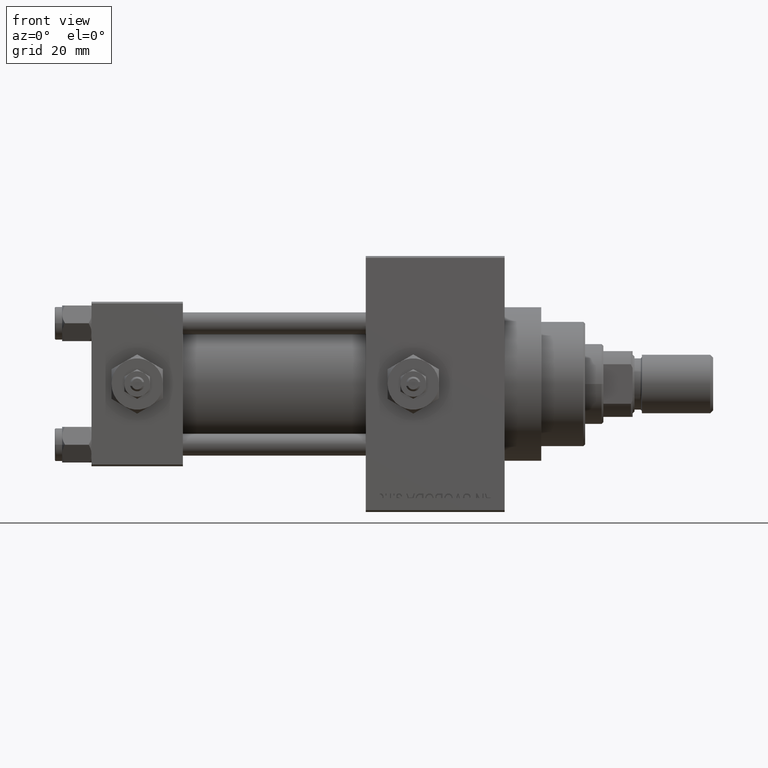
[diagram: clean part render]
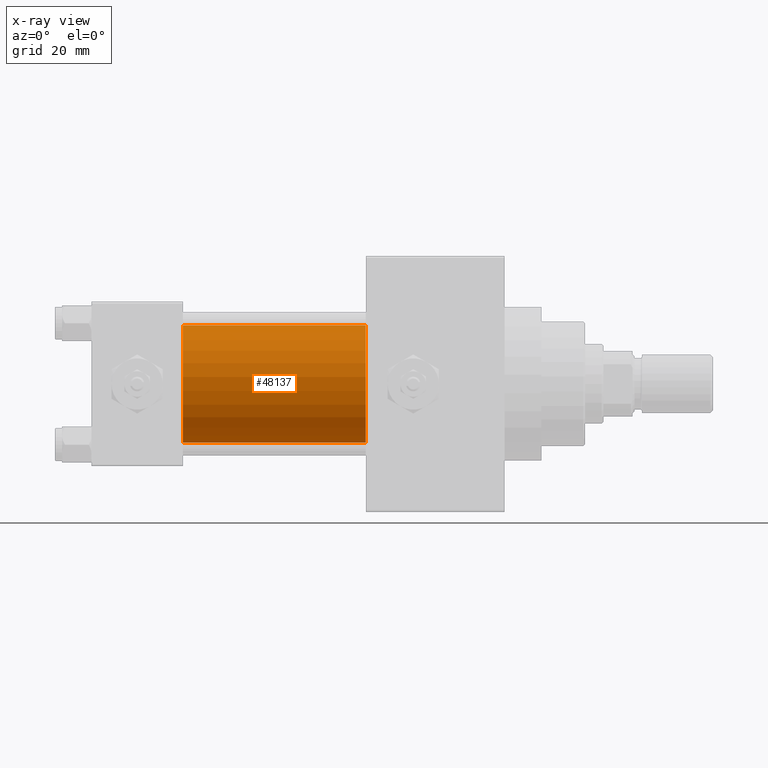
[diagram: x-ray — body ghosted, one internal face saturated and labeled with its STEP entity id]
A machine part, front view, then the same camera in x-ray: the body is ghosted and one INTERNAL B-rep face — a face not visible from any outside direction — is saturated and labeled: STEP entity #48137.
In plain terms, the highlighted cylindrical surface (partial cylindrical patch) has radius 16 mm, axis along (-1, -0, -0).
Its self-contained STEP definition (entity closure, byte-faithful):
#372 = CARTESIAN_POINT ( 'NONE',  ( 25.00000000000000000, -2.602085213965210642E-15, 0.000000000000000000 ) ) ;
#2064 = DIRECTION ( 'NONE',  ( -1.000000000000000000, -0.000000000000000000, -0.000000000000000000 ) ) ;
#2393 = FACE_OUTER_BOUND ( 'NONE', #9220, .T. ) ;
#3368 = CIRCLE ( 'NONE', #8172, 16.00000000000000000 ) ;
#4363 = DIRECTION ( 'NONE',  ( 0.000000000000000000, 0.000000000000000000, -1.000000000000000000 ) ) ;
#5521 = ORIENTED_EDGE ( 'NONE', *, *, #9618, .F. ) ;
#6753 = AXIS2_PLACEMENT_3D ( 'NONE', #17200, #24976, #48485 ) ;
#6989 = AXIS2_PLACEMENT_3D ( 'NONE', #45870, #38614, #34090 ) ;
#8172 = AXIS2_PLACEMENT_3D ( 'NONE', #372, #30696, #4363 ) ;
#9220 = EDGE_LOOP ( 'NONE', ( #14117, #38323, #37028, #5521 ) ) ;
#9618 = EDGE_CURVE ( 'NONE', #33186, #40098, #30678, .T. ) ;
#12327 = CARTESIAN_POINT ( 'NONE',  ( 75.00000000000001421, -6.426503353294456087E-16, -16.00000000000000000 ) ) ;
#13179 = DIRECTION ( 'NONE',  ( -1.000000000000000000, -0.000000000000000000, -0.000000000000000000 ) ) ;
#14117 = ORIENTED_EDGE ( 'NONE', *, *, #31729, .T. ) ;
#17186 = LINE ( 'NONE', #31978, #35494 ) ;
#17200 = CARTESIAN_POINT ( 'NONE',  ( 75.00000000000001421, -2.602085213965210642E-15, 0.000000000000000000 ) ) ;
#18066 = CARTESIAN_POINT ( 'NONE',  ( 75.00000000000001421, -2.602085213965210642E-15, 16.00000000000000000 ) ) ;
#19171 = EDGE_CURVE ( 'NONE', #19390, #28274, #17186, .T. ) ;
#19390 = VERTEX_POINT ( 'NONE', #12327 ) ;
#23195 = VECTOR ( 'NONE', #2064, 1000.000000000000000 ) ;
#24976 = DIRECTION ( 'NONE',  ( -1.000000000000000000, -0.000000000000000000, -0.000000000000000000 ) ) ;
#27783 = CIRCLE ( 'NONE', #6989, 16.00000000000000000 ) ;
#28274 = VERTEX_POINT ( 'NONE', #34416 ) ;
#30678 = LINE ( 'NONE', #35922, #23195 ) ;
#30696 = DIRECTION ( 'NONE',  ( 1.000000000000000000, 0.000000000000000000, 0.000000000000000000 ) ) ;
#31729 = EDGE_CURVE ( 'NONE', #33186, #19390, #27783, .T. ) ;
#31978 = CARTESIAN_POINT ( 'NONE',  ( 75.00000000000001421, -6.426503353294456087E-16, -16.00000000000000000 ) ) ;
#33186 = VERTEX_POINT ( 'NONE', #18066 ) ;
#33467 = CYLINDRICAL_SURFACE ( 'NONE', #6753, 16.00000000000000000 ) ;
#34090 = DIRECTION ( 'NONE',  ( 0.000000000000000000, 0.000000000000000000, -1.000000000000000000 ) ) ;
#34416 = CARTESIAN_POINT ( 'NONE',  ( 25.00000000000000000, -6.426503353294456087E-16, -16.00000000000000000 ) ) ;
#35494 = VECTOR ( 'NONE', #13179, 1000.000000000000000 ) ;
#35922 = CARTESIAN_POINT ( 'NONE',  ( 75.00000000000001421, -2.602085213965210642E-15, 16.00000000000000000 ) ) ;
#37028 = ORIENTED_EDGE ( 'NONE', *, *, #46359, .F. ) ;
#38323 = ORIENTED_EDGE ( 'NONE', *, *, #19171, .T. ) ;
#38614 = DIRECTION ( 'NONE',  ( 1.000000000000000000, 0.000000000000000000, 0.000000000000000000 ) ) ;
#40098 = VERTEX_POINT ( 'NONE', #44673 ) ;
#44673 = CARTESIAN_POINT ( 'NONE',  ( 25.00000000000000000, -2.602085213965210642E-15, 16.00000000000000000 ) ) ;
#45870 = CARTESIAN_POINT ( 'NONE',  ( 75.00000000000001421, -2.602085213965210642E-15, 0.000000000000000000 ) ) ;
#46359 = EDGE_CURVE ( 'NONE', #40098, #28274, #3368, .T. ) ;
#48137 = ADVANCED_FACE ( 'NONE', ( #2393 ), #33467, .F. ) ;
#48485 = DIRECTION ( 'NONE',  ( 0.000000000000000000, 0.000000000000000000, 1.000000000000000000 ) ) ;